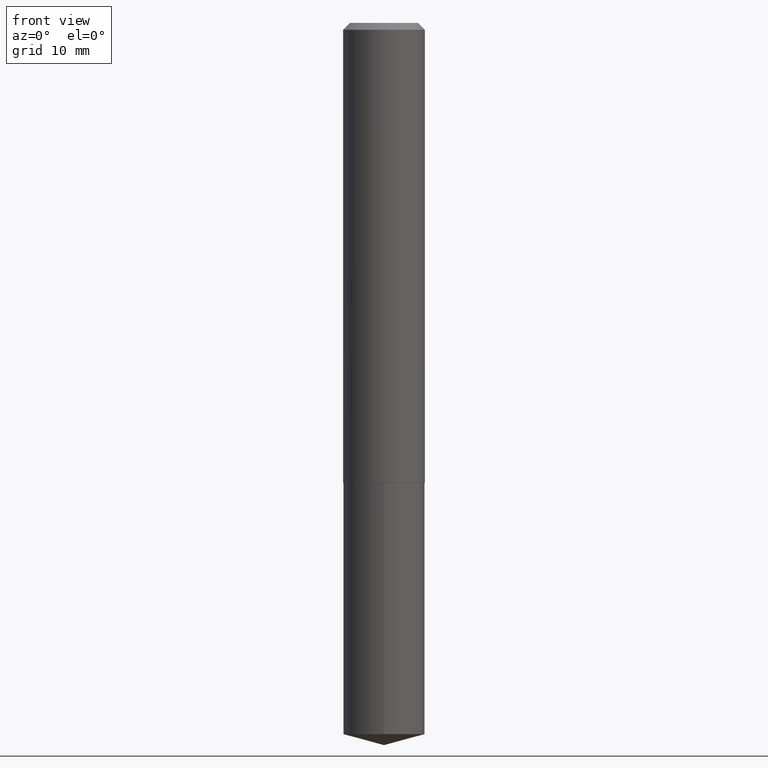
[diagram: clean part render]
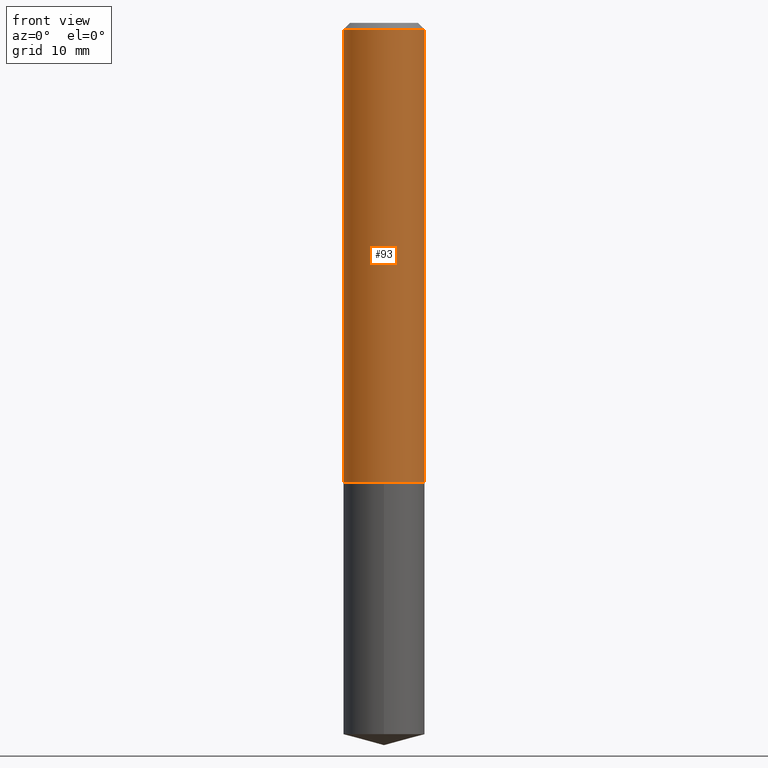
[diagram: same view with one face highlighted and labeled with its STEP entity id]
A machine part, front view. The second image highlights one B-rep face of the part: STEP entity #93.
In plain terms, the highlighted cylindrical surface (partial cylindrical patch) has radius 4.7498 mm, axis along (-0, 0, 1).
Its self-contained STEP definition (entity closure, byte-faithful):
#3 = DIRECTION ( 'NONE',  ( -2.445468806185136597E-29, 3.491481338843145583E-15, 1.000000000000000000 ) ) ;
#4 = CARTESIAN_POINT ( 'NONE',  ( 7.642090019328603538E-31, -1.091087918388490390E-16, -0.03125000000000021511 ) ) ;
#5 = EDGE_CURVE ( 'NONE', #281, #332, #63, .T. ) ;
#7 = ORIENTED_EDGE ( 'NONE', *, *, #5, .T. ) ;
#44 = CIRCLE ( 'NONE', #255, 0.1870000000000002771 ) ;
#58 = EDGE_CURVE ( 'NONE', #362, #332, #176, .T. ) ;
#63 = LINE ( 'NONE', #120, #138 ) ;
#64 = EDGE_CURVE ( 'NONE', #92, #362, #154, .T. ) ;
#71 = DIRECTION ( 'NONE',  ( -2.445468806185136877E-29, 3.491481338843145188E-15, 1.000000000000000000 ) ) ;
#92 = VERTEX_POINT ( 'NONE', #292 ) ;
#93 = ADVANCED_FACE ( 'NONE', ( #101 ), #232, .T. ) ;
#96 = CARTESIAN_POINT ( 'NONE',  ( -0.1870000000000001383, 1.328714915871388330E-15, -9.198408618776680107E-30 ) ) ;
#101 = FACE_OUTER_BOUND ( 'NONE', #325, .T. ) ;
#120 = CARTESIAN_POINT ( 'NONE',  ( 0.1870000000000001383, -1.305814020727332790E-15, 9.118450570738406715E-30 ) ) ;
#128 = CARTESIAN_POINT ( 'NONE',  ( -0.1870000000000000551, -2.402020181715984177E-15, -0.03125000000000021511 ) ) ;
#138 = VECTOR ( 'NONE', #71, 39.37007874015748143 ) ;
#149 = ORIENTED_EDGE ( 'NONE', *, *, #245, .T. ) ;
#153 = ORIENTED_EDGE ( 'NONE', *, *, #58, .F. ) ;
#154 = LINE ( 'NONE', #96, #266 ) ;
#159 = CARTESIAN_POINT ( 'NONE',  ( 0.1870000000000000551, -1.414922812566181102E-15, -0.03125000000000021511 ) ) ;
#176 = CIRCLE ( 'NONE', #306, 0.1870000000000000551 ) ;
#204 = CARTESIAN_POINT ( 'NONE',  ( 0.000000000000000000, 0.000000000000000000, 0.000000000000000000 ) ) ;
#206 = DIRECTION ( 'NONE',  ( 1.000000000000000000, -6.982962677686265133E-15, 0.000000000000000000 ) ) ;
#222 = AXIS2_PLACEMENT_3D ( 'NONE', #204, #3, #343 ) ;
#230 = DIRECTION ( 'NONE',  ( -2.445468806185136877E-29, 3.491481338843145188E-15, 1.000000000000000000 ) ) ;
#232 = CYLINDRICAL_SURFACE ( 'NONE', #222, 0.1870000000000001383 ) ;
#236 = CARTESIAN_POINT ( 'NONE',  ( 0.1870000000000002771, -8.658175424063231465E-15, -2.105800000000000338 ) ) ;
#238 = DIRECTION ( 'NONE',  ( -2.445468806185136597E-29, 3.491481338843145583E-15, 1.000000000000000000 ) ) ;
#245 = EDGE_CURVE ( 'NONE', #92, #281, #44, .T. ) ;
#255 = AXIS2_PLACEMENT_3D ( 'NONE', #349, #238, #206 ) ;
#259 = DIRECTION ( 'NONE',  ( 1.000000000000000000, -6.982962677686266711E-15, 0.000000000000000000 ) ) ;
#266 = VECTOR ( 'NONE', #230, 39.37007874015748143 ) ;
#281 = VERTEX_POINT ( 'NONE', #236 ) ;
#292 = CARTESIAN_POINT ( 'NONE',  ( -0.1870000000000002771, -6.023646487464508570E-15, -2.105800000000000338 ) ) ;
#306 = AXIS2_PLACEMENT_3D ( 'NONE', #4, #348, #259 ) ;
#308 = ORIENTED_EDGE ( 'NONE', *, *, #64, .F. ) ;
#325 = EDGE_LOOP ( 'NONE', ( #308, #149, #7, #153 ) ) ;
#332 = VERTEX_POINT ( 'NONE', #159 ) ;
#343 = DIRECTION ( 'NONE',  ( 1.000000000000000000, -6.982962677686266711E-15, 4.876176775795935793E-29 ) ) ;
#348 = DIRECTION ( 'NONE',  ( -2.445468806185136597E-29, 3.491481338843145583E-15, 1.000000000000000000 ) ) ;
#349 = CARTESIAN_POINT ( 'NONE',  ( 5.149668212064661332E-29, -7.352361403335897886E-15, -2.105800000000000338 ) ) ;
#362 = VERTEX_POINT ( 'NONE', #128 ) ;